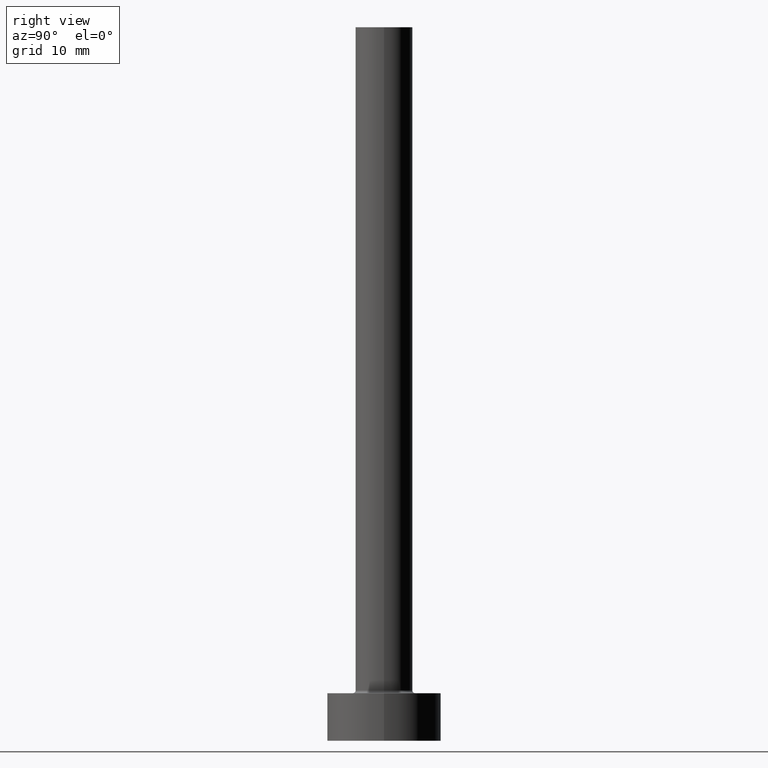
[diagram: clean part render]
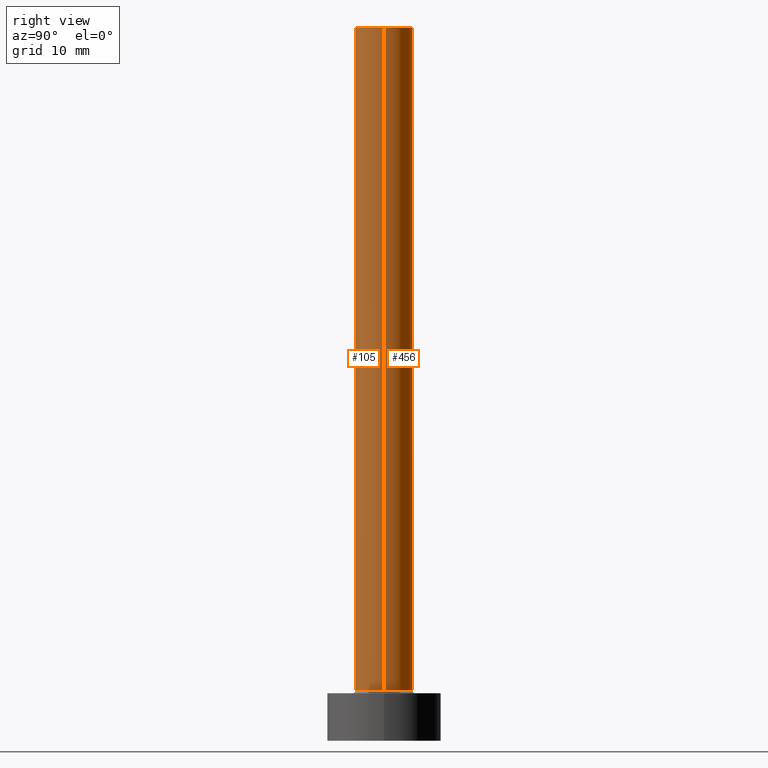
[diagram: same view with one multi-face feature highlighted, each face labeled with its STEP entity id]
A machine part, right view. The highlighted faces form ONE feature: a constant-radius fillet chain: 2 tangent blend faces with common blend radius 3 mm. The faces share edges in the B-rep.
Their STEP definitions:
[1] entity #105 (Cylinder):
#8 = VERTEX_POINT ( 'NONE', #87 ) ;
#10 = VERTEX_POINT ( 'NONE', #222 ) ;
#17 = VECTOR ( 'NONE', #292, 1000.000000000000000 ) ;
#41 = AXIS2_PLACEMENT_3D ( 'NONE', #181, #255, #50 ) ;
#50 = DIRECTION ( 'NONE',  ( 1.000000000000000000, 0.000000000000000000, 0.000000000000000000 ) ) ;
#73 = CARTESIAN_POINT ( 'NONE',  ( 3.000000000000000444, 3.673940397442060361E-16, 75.00000000000001421 ) ) ;
#84 = ORIENTED_EDGE ( 'NONE', *, *, #417, .T. ) ;
#87 = CARTESIAN_POINT ( 'NONE',  ( -3.000000000000000444, 0.000000000000000000, 75.00000000000001421 ) ) ;
#98 = DIRECTION ( 'NONE',  ( 1.000000000000000000, 0.000000000000000000, 0.000000000000000000 ) ) ;
#105 = ADVANCED_FACE ( 'NONE', ( #270 ), #206, .T. ) ;
#134 = EDGE_CURVE ( 'NONE', #10, #196, #439, .T. ) ;
#140 = DIRECTION ( 'NONE',  ( -0.000000000000000000, -0.000000000000000000, -1.000000000000000000 ) ) ;
#141 = VECTOR ( 'NONE', #140, 1000.000000000000000 ) ;
#171 = CARTESIAN_POINT ( 'NONE',  ( 0.000000000000000000, 0.000000000000000000, 75.00000000000001421 ) ) ;
#181 = CARTESIAN_POINT ( 'NONE',  ( 0.000000000000000000, 0.000000000000000000, 75.00000000000001421 ) ) ;
#182 = ORIENTED_EDGE ( 'NONE', *, *, #134, .T. ) ;
#196 = VERTEX_POINT ( 'NONE', #283 ) ;
#199 = DIRECTION ( 'NONE',  ( 0.000000000000000000, 0.000000000000000000, 1.000000000000000000 ) ) ;
#206 = CYLINDRICAL_SURFACE ( 'NONE', #350, 3.000000000000000444 ) ;
#210 = LINE ( 'NONE', #396, #141 ) ;
#222 = CARTESIAN_POINT ( 'NONE',  ( -3.000000000000000444, 0.000000000000000000, 5.299999999999998934 ) ) ;
#234 = AXIS2_PLACEMENT_3D ( 'NONE', #420, #199, #98 ) ;
#255 = DIRECTION ( 'NONE',  ( 0.000000000000000000, 0.000000000000000000, 1.000000000000000000 ) ) ;
#263 = LINE ( 'NONE', #403, #17 ) ;
#270 = FACE_OUTER_BOUND ( 'NONE', #404, .T. ) ;
#273 = EDGE_CURVE ( 'NONE', #390, #196, #210, .T. ) ;
#278 = DIRECTION ( 'NONE',  ( -1.000000000000000000, 0.000000000000000000, 0.000000000000000000 ) ) ;
#283 = CARTESIAN_POINT ( 'NONE',  ( 3.000000000000000444, 3.673940397442060361E-16, 5.299999999999998934 ) ) ;
#292 = DIRECTION ( 'NONE',  ( -0.000000000000000000, -0.000000000000000000, -1.000000000000000000 ) ) ;
#350 = AXIS2_PLACEMENT_3D ( 'NONE', #171, #461, #278 ) ;
#390 = VERTEX_POINT ( 'NONE', #73 ) ;
#395 = CIRCLE ( 'NONE', #41, 3.000000000000000444 ) ;
#396 = CARTESIAN_POINT ( 'NONE',  ( 3.000000000000000444, 3.673940397442060361E-16, 75.00000000000001421 ) ) ;
#397 = ORIENTED_EDGE ( 'NONE', *, *, #421, .F. ) ;
#403 = CARTESIAN_POINT ( 'NONE',  ( -3.000000000000000444, 0.000000000000000000, 75.00000000000001421 ) ) ;
#404 = EDGE_LOOP ( 'NONE', ( #434, #397, #84, #182 ) ) ;
#417 = EDGE_CURVE ( 'NONE', #8, #10, #263, .T. ) ;
#420 = CARTESIAN_POINT ( 'NONE',  ( 0.000000000000000000, 0.000000000000000000, 5.299999999999998934 ) ) ;
#421 = EDGE_CURVE ( 'NONE', #8, #390, #395, .T. ) ;
#434 = ORIENTED_EDGE ( 'NONE', *, *, #273, .F. ) ;
#439 = CIRCLE ( 'NONE', #234, 3.000000000000000444 ) ;
#461 = DIRECTION ( 'NONE',  ( -0.000000000000000000, -0.000000000000000000, -1.000000000000000000 ) ) ;
[2] entity #456 (Cylinder):
#8 = VERTEX_POINT ( 'NONE', #87 ) ;
#10 = VERTEX_POINT ( 'NONE', #222 ) ;
#17 = VECTOR ( 'NONE', #292, 1000.000000000000000 ) ;
#23 = CIRCLE ( 'NONE', #321, 3.000000000000000444 ) ;
#26 = DIRECTION ( 'NONE',  ( 1.000000000000000000, 0.000000000000000000, 0.000000000000000000 ) ) ;
#30 = DIRECTION ( 'NONE',  ( 0.000000000000000000, 0.000000000000000000, 1.000000000000000000 ) ) ;
#52 = CARTESIAN_POINT ( 'NONE',  ( 0.000000000000000000, 0.000000000000000000, 75.00000000000001421 ) ) ;
#70 = DIRECTION ( 'NONE',  ( 0.000000000000000000, 0.000000000000000000, 1.000000000000000000 ) ) ;
#73 = CARTESIAN_POINT ( 'NONE',  ( 3.000000000000000444, 3.673940397442060361E-16, 75.00000000000001421 ) ) ;
#87 = CARTESIAN_POINT ( 'NONE',  ( -3.000000000000000444, 0.000000000000000000, 75.00000000000001421 ) ) ;
#123 = EDGE_LOOP ( 'NONE', ( #154, #443, #246, #145 ) ) ;
#140 = DIRECTION ( 'NONE',  ( -0.000000000000000000, -0.000000000000000000, -1.000000000000000000 ) ) ;
#141 = VECTOR ( 'NONE', #140, 1000.000000000000000 ) ;
#145 = ORIENTED_EDGE ( 'NONE', *, *, #417, .F. ) ;
#146 = DIRECTION ( 'NONE',  ( 1.000000000000000000, 0.000000000000000000, 0.000000000000000000 ) ) ;
#154 = ORIENTED_EDGE ( 'NONE', *, *, #187, .F. ) ;
#187 = EDGE_CURVE ( 'NONE', #390, #8, #23, .T. ) ;
#194 = AXIS2_PLACEMENT_3D ( 'NONE', #52, #294, #437 ) ;
#196 = VERTEX_POINT ( 'NONE', #283 ) ;
#210 = LINE ( 'NONE', #396, #141 ) ;
#222 = CARTESIAN_POINT ( 'NONE',  ( -3.000000000000000444, 0.000000000000000000, 5.299999999999998934 ) ) ;
#223 = CYLINDRICAL_SURFACE ( 'NONE', #194, 3.000000000000000444 ) ;
#239 = EDGE_CURVE ( 'NONE', #196, #10, #388, .T. ) ;
#240 = CARTESIAN_POINT ( 'NONE',  ( 0.000000000000000000, 0.000000000000000000, 75.00000000000001421 ) ) ;
#246 = ORIENTED_EDGE ( 'NONE', *, *, #239, .T. ) ;
#263 = LINE ( 'NONE', #403, #17 ) ;
#273 = EDGE_CURVE ( 'NONE', #390, #196, #210, .T. ) ;
#283 = CARTESIAN_POINT ( 'NONE',  ( 3.000000000000000444, 3.673940397442060361E-16, 5.299999999999998934 ) ) ;
#292 = DIRECTION ( 'NONE',  ( -0.000000000000000000, -0.000000000000000000, -1.000000000000000000 ) ) ;
#294 = DIRECTION ( 'NONE',  ( -0.000000000000000000, -0.000000000000000000, -1.000000000000000000 ) ) ;
#321 = AXIS2_PLACEMENT_3D ( 'NONE', #240, #30, #26 ) ;
#368 = FACE_OUTER_BOUND ( 'NONE', #123, .T. ) ;
#383 = AXIS2_PLACEMENT_3D ( 'NONE', #391, #70, #146 ) ;
#388 = CIRCLE ( 'NONE', #383, 3.000000000000000444 ) ;
#390 = VERTEX_POINT ( 'NONE', #73 ) ;
#391 = CARTESIAN_POINT ( 'NONE',  ( 0.000000000000000000, 0.000000000000000000, 5.299999999999998934 ) ) ;
#396 = CARTESIAN_POINT ( 'NONE',  ( 3.000000000000000444, 3.673940397442060361E-16, 75.00000000000001421 ) ) ;
#403 = CARTESIAN_POINT ( 'NONE',  ( -3.000000000000000444, 0.000000000000000000, 75.00000000000001421 ) ) ;
#417 = EDGE_CURVE ( 'NONE', #8, #10, #263, .T. ) ;
#437 = DIRECTION ( 'NONE',  ( -1.000000000000000000, 0.000000000000000000, 0.000000000000000000 ) ) ;
#443 = ORIENTED_EDGE ( 'NONE', *, *, #273, .T. ) ;
#456 = ADVANCED_FACE ( 'NONE', ( #368 ), #223, .T. ) ;